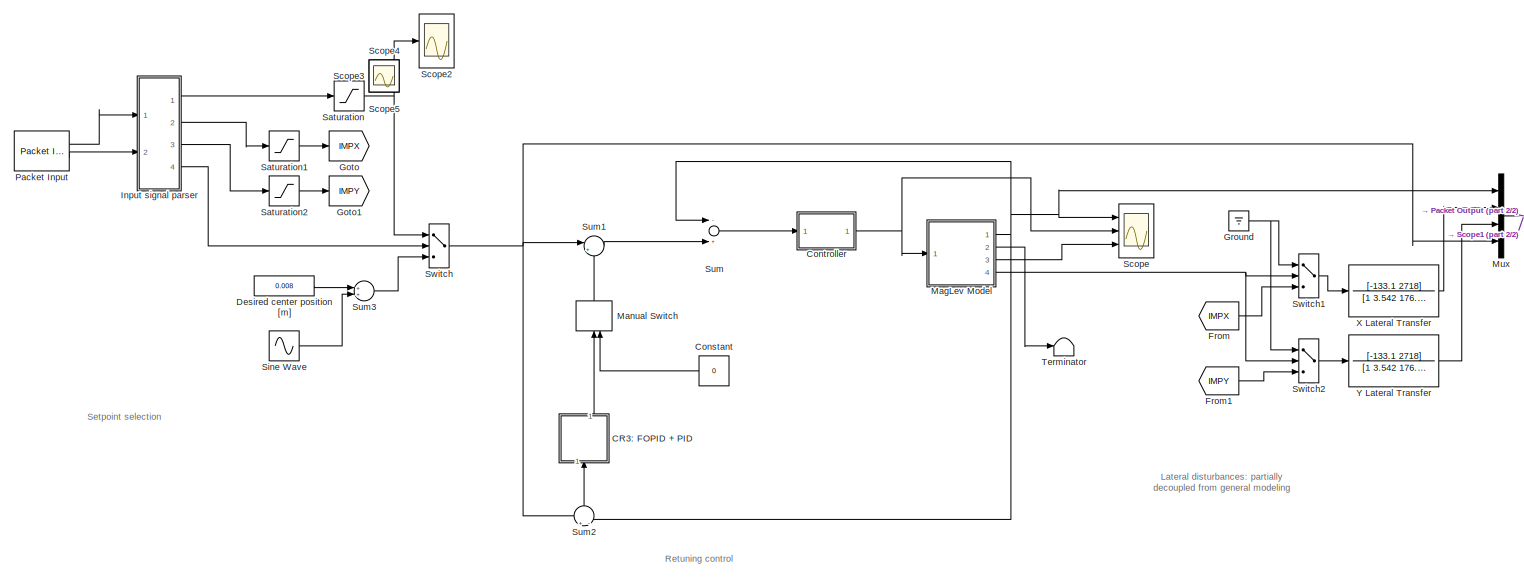
[diagram: root canvas - part 1/2, most of the canvas]
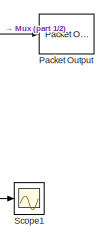
[diagram: root canvas - part 2/2, middle right region]
MODEL slx_11a3bc73768c
KIND model
CONFIG AbsTol = auto
CONFIG EnableMultiTasking = on
CONFIG FixedStep = auto
CONFIG MaxStep = auto
CONFIG MinStep = auto
CONFIG RelTol = 1e-3
CONFIG SampleTimeConstraint = Unconstrained
CONFIG Solver = ode5
CONFIG SolverName = ode5
CONFIG StartTime = 0.0
CONFIG StopTime = 600
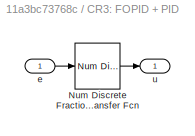
BLOCK [SubSystem] CR3: FOPID + PID
  Ports = [1, 1]
  RequestExecContextInheritance = off
BLOCK [Reference] CR3: FOPID + PID/Num Discrete Fractional Transfer Fcn  REF=fod/Num Discrete  (lib defined in slx_5cb2d42c7bef)
Fractional Transfer Fcn
  Ports = [1, 1]
  SourceBlock = fod/Num Discrete\nFractional Transfer Fcn
  SourceProductName = FOMCON Toolbox
  SourceType = Discrete Fractional Transfer Function (numerical polynomial coefficient/exponents)
BLOCK [Inport] CR3: FOPID + PID/e
  IconDisplay = Port number
BLOCK [Outport] CR3: FOPID + PID/u
  IconDisplay = Port number
BLOCK [Constant] Constant
  Value = 0
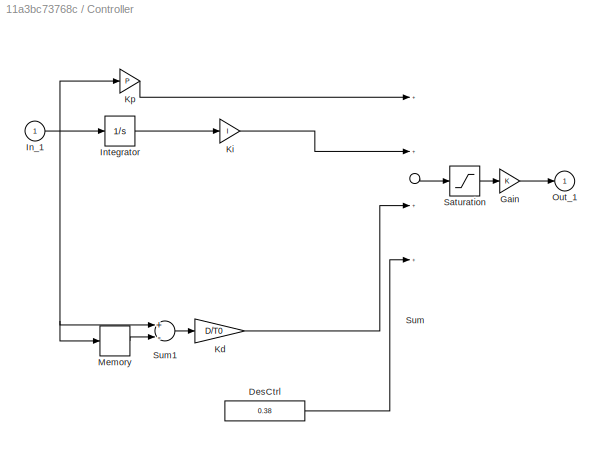
BLOCK [SubSystem] Controller
  Ports = [1, 1]
  RequestExecContextInheritance = off
BLOCK [Constant] Controller/DesCtrl
  Value = 0.38
BLOCK [Gain] Controller/Gain
BLOCK [Inport] Controller/In_1
  IconDisplay = Port number
BLOCK [Integrator] Controller/Integrator
  InitialCondition = 0*4e-5
  LimitOutput = on
  LowerSaturationLimit = -1
  Ports = [1, 1]
  UpperSaturationLimit = 1
BLOCK [Gain] Controller/Kd
  Gain = D/T0
BLOCK [Gain] Controller/Ki
  Gain = I
BLOCK [Gain] Controller/Kp
  Gain = P
BLOCK [Memory] Controller/Memory
BLOCK [Outport] Controller/Out_1
  IconDisplay = Port number
  InitialOutput = 0
BLOCK [Saturate] Controller/Saturation
  InputPortMap = u0
  LowerLimit = 0
  Ports = [1, 1]
  UpperLimit = 1
BLOCK [Sum] Controller/Sum
  Inputs = ++++
  Ports = [4, 1]
BLOCK [Sum] Controller/Sum1
  Inputs = +-
  Ports = [2, 1]
BLOCK [Constant] Desired center position [m]
  Value = 0.008
BLOCK [From] From
  GotoTag = IMPX
BLOCK [From] From1
  GotoTag = IMPY
BLOCK [Goto] Goto
  GotoTag = IMPX
BLOCK [Goto] Goto1
  GotoTag = IMPY
BLOCK [Ground] Ground
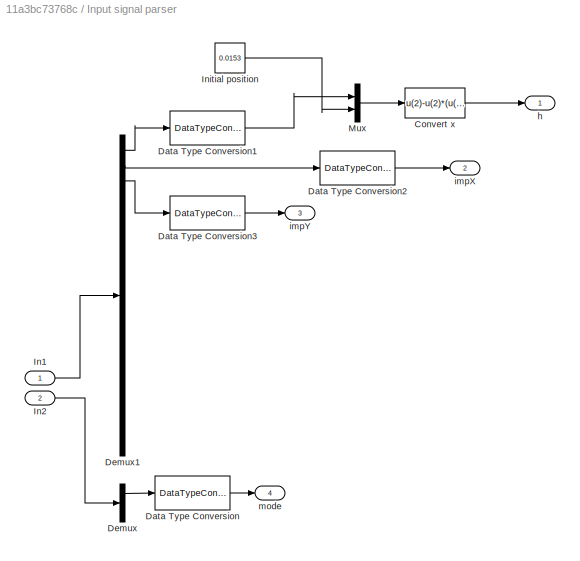
BLOCK [SubSystem] Input signal parser
  Ports = [2, 4]
  RequestExecContextInheritance = off
BLOCK [Fcn] Input signal parser/Convert x 
  Expr = u(2)-u(2)*(u(1)+35.834)/(61.225+35.834)
BLOCK [DataTypeConversion] Input signal parser/Data Type Conversion
  OutDataTypeStr = double
  RndMeth = Floor
  SaturateOnIntegerOverflow = off
BLOCK [DataTypeConversion] Input signal parser/Data Type Conversion1
  OutDataTypeStr = double
  RndMeth = Floor
  SaturateOnIntegerOverflow = off
BLOCK [DataTypeConversion] Input signal parser/Data Type Conversion2
  OutDataTypeStr = double
  RndMeth = Floor
  SaturateOnIntegerOverflow = off
BLOCK [DataTypeConversion] Input signal parser/Data Type Conversion3
  OutDataTypeStr = double
  RndMeth = Floor
  SaturateOnIntegerOverflow = off
BLOCK [Demux] Input signal parser/Demux
  DisplayOption = bar
  Outputs = 3
  Ports = [1, 3]
BLOCK [Demux] Input signal parser/Demux1
  DisplayOption = bar
  Outputs = 20
  Ports = [1, 20]
BLOCK [Inport] Input signal parser/In1
  IconDisplay = Port number
BLOCK [Inport] Input signal parser/In2
  IconDisplay = Port number
  Port = 2
BLOCK [Constant] Input signal parser/Initial position 
  Value = 0.0153
BLOCK [Mux] Input signal parser/Mux
  DisplayOption = bar
  Inputs = 2
  Ports = [2, 1]
BLOCK [Outport] Input signal parser/h
  IconDisplay = Port number
BLOCK [Outport] Input signal parser/impX
  IconDisplay = Port number
  Port = 2
BLOCK [Outport] Input signal parser/impY
  IconDisplay = Port number
  Port = 3
BLOCK [Outport] Input signal parser/mode
  IconDisplay = Port number
  Port = 4
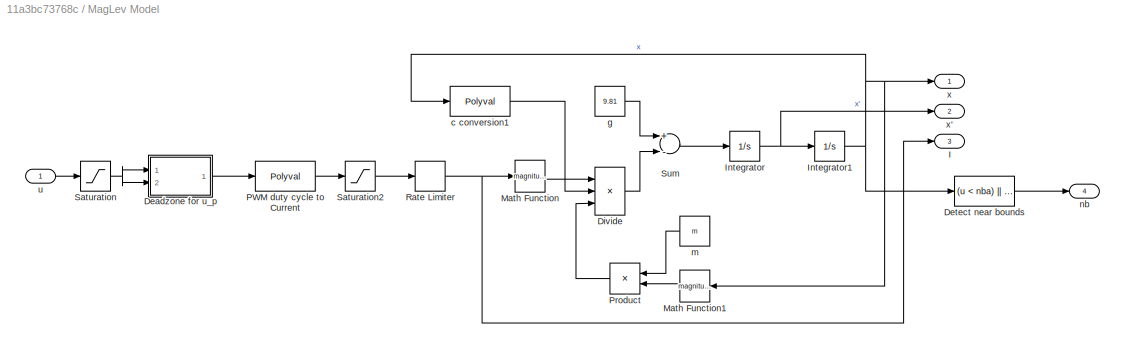
BLOCK [SubSystem] MagLev Model
  Ports = [1, 4]
  RequestExecContextInheritance = off
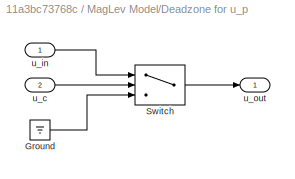
BLOCK [SubSystem] MagLev Model/Deadzone for u_p
  Ports = [2, 1]
  RequestExecContextInheritance = off
BLOCK [Ground] MagLev Model/Deadzone for u_p/Ground
BLOCK [Switch] MagLev Model/Deadzone for u_p/Switch
  InputSameDT = off
  SaturateOnIntegerOverflow = off
  Threshold = ud_high
BLOCK [Inport] MagLev Model/Deadzone for u_p/u_c
  IconDisplay = Port number
  Port = 2
BLOCK [Inport] MagLev Model/Deadzone for u_p/u_in
  IconDisplay = Port number
BLOCK [Outport] MagLev Model/Deadzone for u_p/u_out
  IconDisplay = Port number
BLOCK [Fcn] MagLev Model/Detect near bounds
  Expr = (u < nba) || (u > x0-nba)
BLOCK [Product] MagLev Model/Divide
  InputSameDT = off
  Inputs = **/
  OutDataTypeStr = Inherit: Inherit via internal rule
  Ports = [3, 1]
  RndMeth = Floor
  SaturateOnIntegerOverflow = off
BLOCK [Outport] MagLev Model/I
  IconDisplay = Port number
  Port = 3
BLOCK [Integrator] MagLev Model/Integrator
  LowerSaturationLimit = -1
  Ports = [1, 1]
  UpperSaturationLimit = 1
BLOCK [Integrator] MagLev Model/Integrator1
  InitialCondition = x0
  LimitOutput = on
  LowerSaturationLimit = 1e-5
  Ports = [1, 1]
  UpperSaturationLimit = x0
BLOCK [Math] MagLev Model/Math Function
  Operator = magnitude^2
  Ports = [1, 1]
BLOCK [Math] MagLev Model/Math Function1
  Operator = magnitude^2
  Ports = [1, 1]
BLOCK [Polyval] MagLev Model/PWM duty cycle to Current
  Coefs = u_poly
BLOCK [Product] MagLev Model/Product
  InputSameDT = off
  OutDataTypeStr = Inherit: Inherit via internal rule
  Ports = [2, 1]
  SaturateOnIntegerOverflow = off
BLOCK [RateLimiter] MagLev Model/Rate Limiter
  FallingSlewLimit = -56.4
  RisingSlewLimit = 56.4
  SampleTimeMode = inherited
BLOCK [Saturate] MagLev Model/Saturation
  InputPortMap = u0
  LowerLimit = 0
  Ports = [1, 1]
  UpperLimit = 1
BLOCK [Saturate] MagLev Model/Saturation2
  InputPortMap = u0
  LowerLimit = 0
  Ports = [1, 1]
  UpperLimit = Inf
BLOCK [Sum] MagLev Model/Sum
  InputSameDT = off
  Inputs = +-
  OutDataTypeStr = Inherit: Inherit via internal rule
  Ports = [2, 1]
  SaturateOnIntegerOverflow = off
BLOCK [Polyval] MagLev Model/c conversion1
  Coefs = c_poly
BLOCK [Constant] MagLev Model/g
  Value = 9.81
BLOCK [Constant] MagLev Model/m
  Value = m
BLOCK [Outport] MagLev Model/nb
  IconDisplay = Port number
  Port = 4
BLOCK [Inport] MagLev Model/u
  IconDisplay = Port number
BLOCK [Outport] MagLev Model/x
  IconDisplay = Port number
BLOCK [Outport] MagLev Model/x'
  IconDisplay = Port number
  Port = 2
BLOCK [ManualSwitch] Manual Switch
BLOCK [Mux] Mux
  DisplayOption = bar
  Ports = [4, 1]
BLOCK [Reference] Packet Input  REF=sldrtlib/Packet Input
  AttributesFormatString = UDP Protocol [9977]
  Ports = [0, 2]
  SourceBlock = sldrtlib/Packet Input
  SourceProductBaseCode = WT
  SourceProductName = Simulink Desktop Real-Time
  SourceType = Simulink Desktop Real-Time Packet Input
BLOCK [Reference] Packet Output  REF=sldrtlib/Packet Output
  AttributesFormatString = UDP Protocol [9999]
  Ports = [1]
  SourceBlock = sldrtlib/Packet Output
  SourceProductBaseCode = WT
  SourceProductName = Simulink Desktop Real-Time
  SourceType = Simulink Desktop Real-Time Packet Output
BLOCK [Saturate] Saturation
  InputPortMap = u0
  LowerLimit = 0.007
  Ports = [1, 1]
  UpperLimit = 0.012
BLOCK [Saturate] Saturation1
  InputPortMap = u0
  LowerLimit = -1e-1
  Ports = [1, 1]
  UpperLimit = 1e-1
BLOCK [Saturate] Saturation2
  InputPortMap = u0
  LowerLimit = -1e-1
  Ports = [1, 1]
  UpperLimit = 1e-1
BLOCK [Scope] Scope
  Floating = off
  NumInputPorts = 3
  Ports = [3]
  ScopeSpecificationString = Simulink.scopes.TimeScopeBlockCfg('CurrentConfiguration', extmgr.ConfigurationSet(extmgr.Configuration('Core','General UI',true),extmgr.Configuration('Core','Source UI',true),extmgr.Configuration('Sources','WiredSimulink',true,'DataLoggingSaveFormat','StructureWithTime','DataLoggingDecimation','1','DataLoggingDecimateData',true),extmgr.Configuration('Visuals','Time Domain',true,'SerializedDisplays...<+2991ch>
BLOCK [Scope] Scope1
  Floating = off
  NumInputPorts = 1
  Ports = [1]
  ScopeSpecificationString = Simulink.scopes.TimeScopeBlockCfg('CurrentConfiguration', extmgr.ConfigurationSet(extmgr.Configuration('Core','General UI',true),extmgr.Configuration('Core','Source UI',true),extmgr.Configuration('Sources','WiredSimulink',true,'DataLoggingVariableName','ScopeData1'),extmgr.Configuration('Visuals','Time Domain',true,'SerializedDisplays',{struct('MinYLimReal','-4.04798','MaxYLimReal','5.66527','YLab...<+1550ch>
BLOCK [Scope] Scope2
  Floating = off
  NumInputPorts = 1
  Ports = [1]
  ScopeSpecificationString = Simulink.scopes.TimeScopeBlockCfg('CurrentConfiguration', extmgr.ConfigurationSet(extmgr.Configuration('Core','General UI',true),extmgr.Configuration('Core','Source UI',true),extmgr.Configuration('Sources','WiredSimulink',true,'DataLoggingSaveFormat','StructureWithTime','DataLoggingDecimation','1','DataLoggingDecimateData',true,'DataLoggingVariableName','ScopeData1'),extmgr.Configuration('Visuals'...<+1594ch>
BLOCK [Scope] Scope3
  Floating = off
  IOType = viewer
  NumInputPorts = 1
  Ports = []
  ScopeSpecificationString = Simulink.scopes.TimeScopeBlockCfg('CurrentConfiguration', extmgr.ConfigurationSet(extmgr.Configuration('Core','General UI',true),extmgr.Configuration('Core','Source UI',true),extmgr.Configuration('Sources','WiredSimulink',true,'DataLoggingVariableName','ScopeData1'),extmgr.Configuration('Visuals','Time Domain',true,'SerializedDisplays',{struct('MinYLimReal','-0.0018','MaxYLimReal','0.0172','YLabel...<+1428ch>
BLOCK [Scope] Scope4
  Floating = off
  IOType = viewer
  NumInputPorts = 1
  Ports = []
  ScopeSpecificationString = Simulink.scopes.TimeScopeBlockCfg('CurrentConfiguration', extmgr.ConfigurationSet(extmgr.Configuration('Core','General UI',true),extmgr.Configuration('Core','Source UI',true),extmgr.Configuration('Sources','WiredSimulink',true,'DataLoggingVariableName','ScopeData2'),extmgr.Configuration('Visuals','Time Domain',true,'SerializedDisplays',{struct('MinYLimReal','-0.0000000011','MaxYLimReal','0.0000000...<+1456ch>
BLOCK [Scope] Scope5
  Floating = off
  IOType = viewer
  NumInputPorts = 1
  Ports = []
  ScopeSpecificationString = Simulink.scopes.TimeScopeBlockCfg('CurrentConfiguration', extmgr.ConfigurationSet(extmgr.Configuration('Core','General UI',true),extmgr.Configuration('Core','Source UI',true),extmgr.Configuration('Sources','WiredSimulink',true,'DataLoggingVariableName','ScopeData1'),extmgr.Configuration('Visuals','Time Domain',true,'SerializedDisplays',{struct('MinYLimReal','-0.11628','MaxYLimReal','0.04656','YLab...<+1425ch>
BLOCK [Sin] Sine Wave
  Amplitude = 0.0015
  Frequency = 2
  Ports = [0, 1]
  SampleTime = 0
BLOCK [Sum] Sum
  Inputs = -+
  Ports = [2, 1]
BLOCK [Sum] Sum1
  IconShape = round
  Inputs = |++
  Ports = [2, 1]
BLOCK [Sum] Sum2
  IconShape = round
  Inputs = +|-
  Ports = [2, 1]
BLOCK [Sum] Sum3
  Ports = [2, 1]
BLOCK [Switch] Switch
  Threshold = 0.5
BLOCK [Switch] Switch1
  Threshold = 0.5
BLOCK [Switch] Switch2
  Threshold = 0.5
BLOCK [Terminator] Terminator
BLOCK [TransferFcn] X Lateral Transfer 
  Denominator = [1 3.542 176.6]
  Numerator = [-133.1 2718]
BLOCK [TransferFcn] Y Lateral Transfer
  Denominator = [1 3.542 176.6]
  Numerator = [-133.1 2718]
ANNOTATION (root): Lateral disturbances: partially decoupled from general modeling
ANNOTATION (root): Retuning control
ANNOTATION (root): Setpoint selection
LINE CR3: FOPID + PID/Num Discrete Fractional Transfer Fcn:1 -> CR3: FOPID + PID/u:1
LINE CR3: FOPID + PID/e:1 -> CR3: FOPID + PID/Num Discrete Fractional Transfer Fcn:1
LINE CR3: FOPID + PID:1 -> Manual Switch:1
LINE Constant:1 -> Manual Switch:2
LINE Controller/DesCtrl:1 -> Controller/Sum:4
LINE Controller/Gain:1 -> Controller/Out_1:1
NET Controller/In_1:1 -> Controller/Integrator:1, Controller/Kp:1, Controller/Memory:1, Controller/Sum1:1
LINE Controller/Integrator:1 -> Controller/Ki:1
LINE Controller/Kd:1 -> Controller/Sum:3
LINE Controller/Ki:1 -> Controller/Sum:2
LINE Controller/Kp:1 -> Controller/Sum:1
LINE Controller/Memory:1 -> Controller/Sum1:2
LINE Controller/Saturation:1 -> Controller/Gain:1
LINE Controller/Sum1:1 -> Controller/Kd:1
LINE Controller/Sum:1 -> Controller/Saturation:1
NET Controller:1 -> MagLev Model:1, Scope:2
LINE Desired center position [m]:1 -> Sum3:1
LINE From1:1 -> Switch2:3
LINE From:1 -> Switch1:3
NET Ground:1 -> Switch1:1, Switch2:1
LINE Input signal parser/Convert x :1 -> Input signal parser/h:1
LINE Input signal parser/Data Type Conversion1:1 -> Input signal parser/Mux:1
LINE Input signal parser/Data Type Conversion2:1 -> Input signal parser/impX:1
LINE Input signal parser/Data Type Conversion3:1 -> Input signal parser/impY:1
LINE Input signal parser/Data Type Conversion:1 -> Input signal parser/mode:1
LINE Input signal parser/Demux1:1 -> Input signal parser/Data Type Conversion1:1
LINE Input signal parser/Demux1:2 -> Input signal parser/Data Type Conversion2:1
LINE Input signal parser/Demux1:3 -> Input signal parser/Data Type Conversion3:1
LINE Input signal parser/Demux:1 -> Input signal parser/Data Type Conversion:1
LINE Input signal parser/In1:1 -> Input signal parser/Demux1:1
LINE Input signal parser/In2:1 -> Input signal parser/Demux:1
LINE Input signal parser/Initial position :1 -> Input signal parser/Mux:2
LINE Input signal parser/Mux:1 -> Input signal parser/Convert x :1
LINE Input signal parser:1 -> Saturation:1
LINE Input signal parser:2 -> Saturation1:1
LINE Input signal parser:3 -> Saturation2:1
LINE Input signal parser:4 -> Switch:2
LINE MagLev Model/Deadzone for u_p/Ground:1 -> MagLev Model/Deadzone for u_p/Switch:3
LINE MagLev Model/Deadzone for u_p/Switch:1 -> MagLev Model/Deadzone for u_p/u_out:1
LINE MagLev Model/Deadzone for u_p/u_c:1 -> MagLev Model/Deadzone for u_p/Switch:2
LINE MagLev Model/Deadzone for u_p/u_in:1 -> MagLev Model/Deadzone for u_p/Switch:1
LINE MagLev Model/Deadzone for u_p:1 -> MagLev Model/PWM duty cycle to Current:1
LINE MagLev Model/Detect near bounds:1 -> MagLev Model/nb:1
LINE MagLev Model/Divide:1 -> MagLev Model/Sum:2
NET MagLev Model/Integrator1:1 -> MagLev Model/Detect near bounds:1, MagLev Model/Math Function1:1, MagLev Model/c conversion1:1, MagLev Model/x:1
NET MagLev Model/Integrator:1 -> MagLev Model/Integrator1:1, MagLev Model/x':1
LINE MagLev Model/Math Function1:1 -> MagLev Model/Product:2
LINE MagLev Model/Math Function:1 -> MagLev Model/Divide:1
LINE MagLev Model/PWM duty cycle to Current:1 -> MagLev Model/Saturation2:1
LINE MagLev Model/Product:1 -> MagLev Model/Divide:3
NET MagLev Model/Rate Limiter:1 -> MagLev Model/I:1, MagLev Model/Math Function:1
LINE MagLev Model/Saturation2:1 -> MagLev Model/Rate Limiter:1
NET MagLev Model/Saturation:1 -> MagLev Model/Deadzone for u_p:1, MagLev Model/Deadzone for u_p:2
LINE MagLev Model/Sum:1 -> MagLev Model/Integrator:1
LINE MagLev Model/c conversion1:1 -> MagLev Model/Divide:2
LINE MagLev Model/g:1 -> MagLev Model/Sum:1
LINE MagLev Model/m:1 -> MagLev Model/Product:1
LINE MagLev Model/u:1 -> MagLev Model/Saturation:1
NET MagLev Model:1 -> Mux:1, Scope:1, Sum2:2, Sum:1
LINE MagLev Model:2 -> Terminator:1
LINE MagLev Model:3 -> Scope:3
NET MagLev Model:4 -> Switch1:2, Switch2:2
LINE Manual Switch:1 -> Sum1:2
NET Mux:1 -> Packet Output:1, Scope1:1
LINE Packet Input:1 -> Input signal parser:1
LINE Packet Input:2 -> Input signal parser:2
LINE Saturation1:1 -> Goto:1
LINE Saturation2:1 -> Goto1:1
NET Saturation:1 -> Scope2:1, Switch:1
LINE Sine Wave:1 -> Sum3:2
LINE Sum1:1 -> Sum:2
LINE Sum2:1 -> CR3: FOPID + PID:1
LINE Sum3:1 -> Switch:3
LINE Sum:1 -> Controller:1
LINE Switch1:1 -> X Lateral Transfer :1
LINE Switch2:1 -> Y Lateral Transfer:1
NET Switch:1 -> Mux:4, Sum1:1, Sum2:1
LINE X Lateral Transfer :1 -> Mux:2
LINE Y Lateral Transfer:1 -> Mux:3
note: NET lines group one-source signal fan-out (src -> all destinations, sorted); 1:1 wires keep LINE
